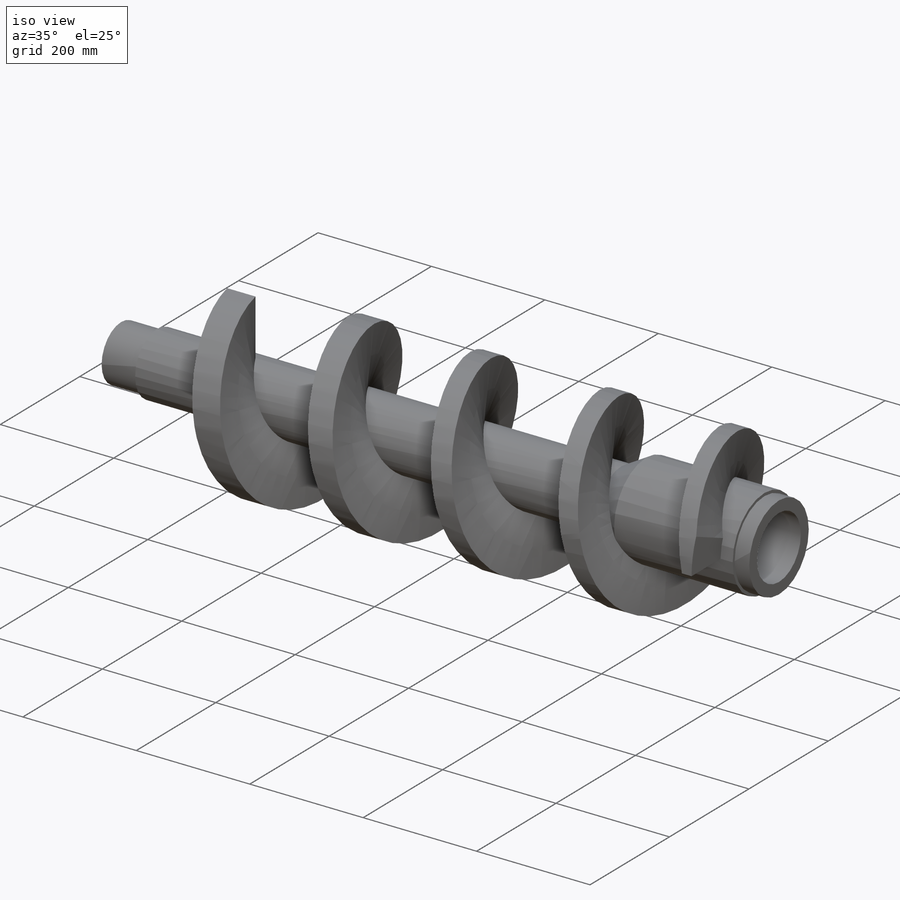
[diagram: iso view]
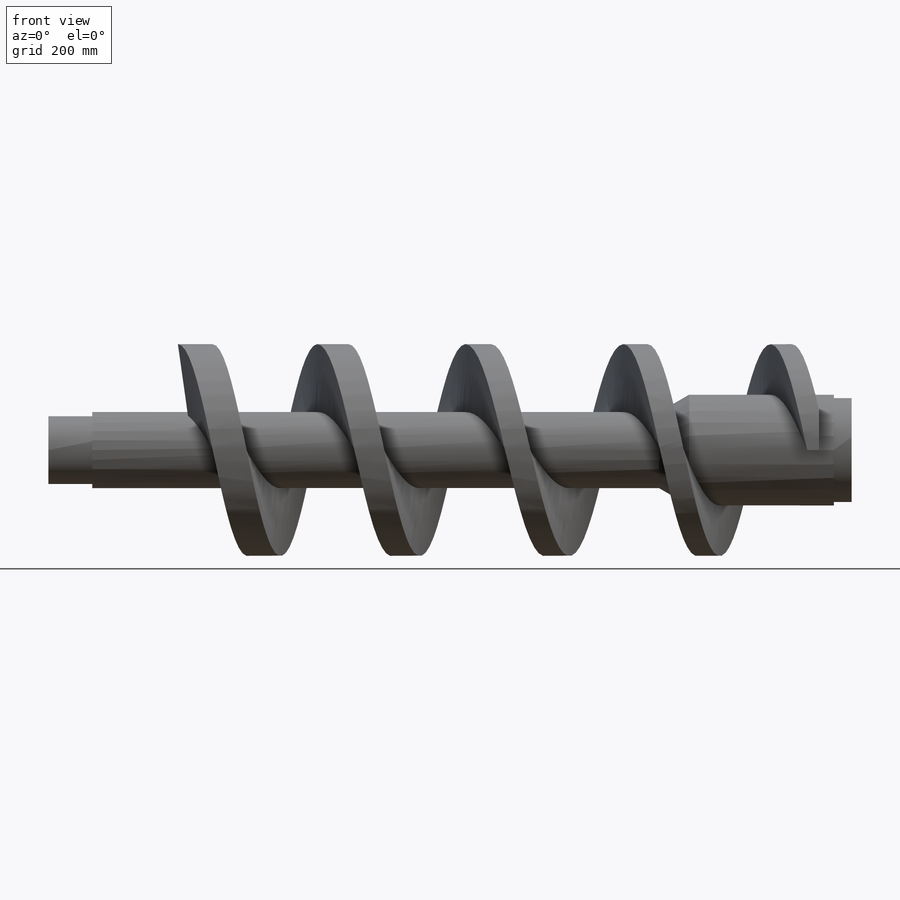
[diagram: front view]
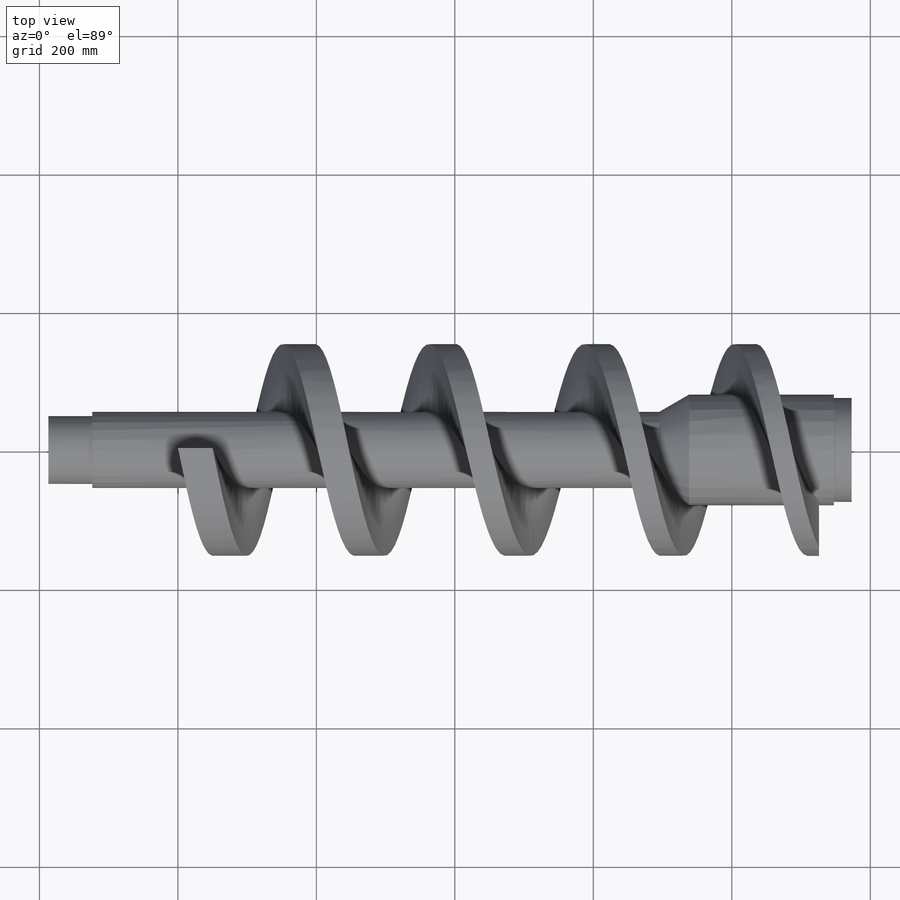
[diagram: top view]
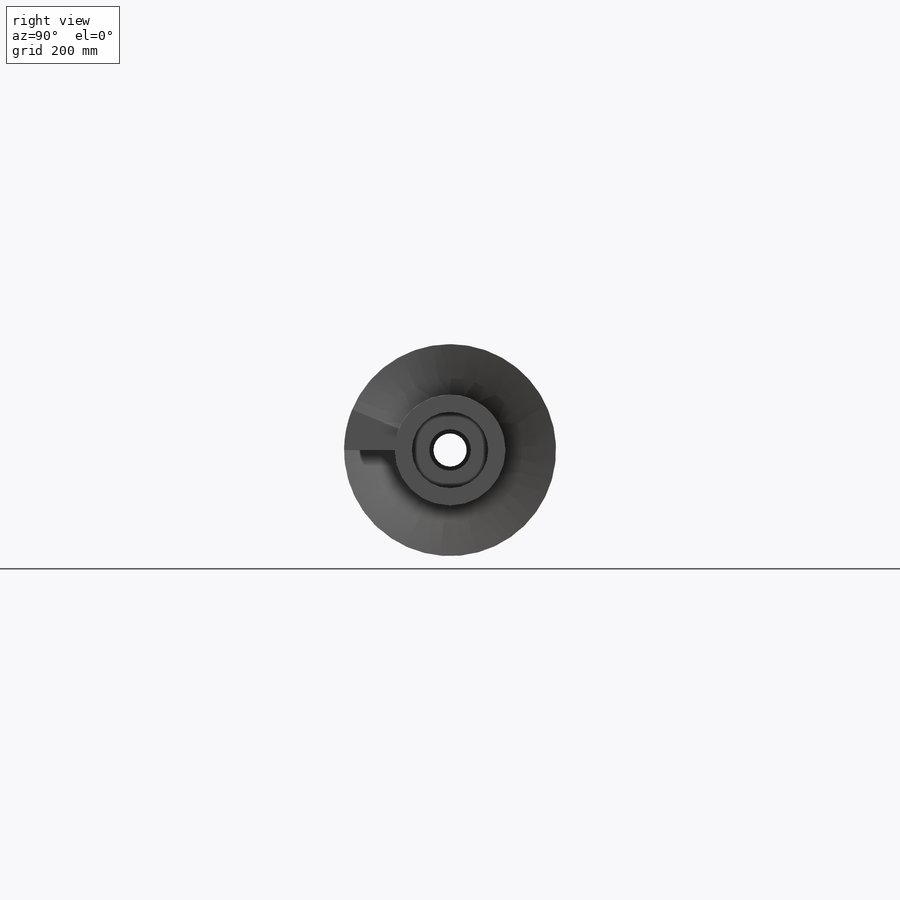
[diagram: right view]
SOLIDWORKS PART (.sldprt)
format: sldprt  version: not decoded by parser v0  size: 694,784 bytes
history: native  units: mm
features: sketch x8, delete_body x2, material x1, plane x1, revolve x1, cut_revolve x1 + 5 further entries (+31 scaffold rows collapsed; 1 parser-record rows omitted)
feature tree (51):
  scaffold x31  (default folders/planes/origin — collapsed)
  material  "Materiał <nieokreślony>"
  plane  "Płaszczyzna przednia"
  "Płaszczyzna górna"
  "Płaszczyzna prawa"
  sketch  "Szkic1"  dims[c1.D1=~60.121768mm c2.D1=201.5mm c2.D2=153.0mm c2.D3=214.0mm c2.D4=228.0mm c2.D5=265.5mm c2.D6=50.0mm c2.D7=45.0mm c2.D8=37.0mm c2.D9=35.0mm c2.D10=30.0mm]
  parser-record x1  (decoder bookkeeping rows leaked as tree rows — omitted from the tree; the rows remain in map.json)
  sketch  "Powierzchnia-Wyciągnięcie po ścieżce2"  dims[D1=~6283.185307mm]
  sketch  "Powierzchnia-Wyciągnięcie po ścieżce3"  dims[D1=~6283.185307mm]
  sketch  "Powierzchnia-Wyciągnięcie po ścieżce5"  dims[D1=~7853.981634mm]
  sketch  "Powierzchnia-Wyciągnięcie po ścieżce6"  dims[D1=~6283.185307mm]
  sketch  "Powierzchnia-Wyciągnięcie po ścieżce7"  dims[D1=~6283.185307mm]
  sketch  "Powierzchnia-Wyciągnięcie po ścieżce8"  dims[D1=~6283.185307mm]
  sketch  "Powierzchnia-Wyciągnięcie po ścieżce9"  dims[D1=~7853.981634mm]
  "Płaszczyzna1"
  delete_body  "Obiekt-Usuń2"
  "Płaszczyzna2"
  "Płaszczyzna3"  Podziel3=0deg
  delete_body  "Obiekt-Usuń3"
  revolve  "Obrót1"  [1 undecoded]
  cut_revolve  "Wycięcie-obrót1"  [1 undecoded]
decode coverage: 8 of 12 modeling features carry decoded parameters; 5 rows unclassified (native names shown)
note: ~ marks probable driven/reference dimensions
note: 2 parameter values undecoded
note: suppression state not decoded; provenance and decode notes live in map.json
